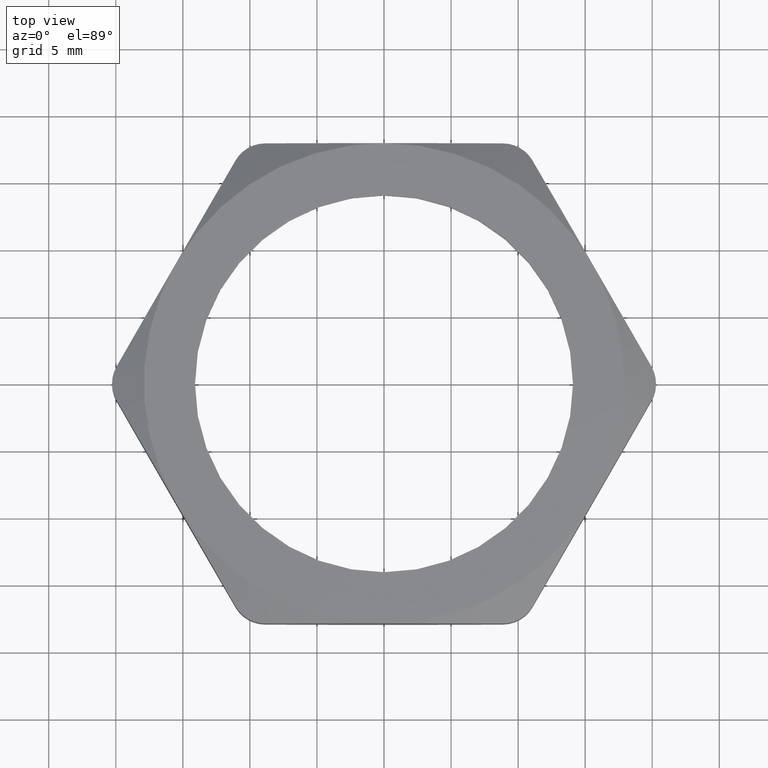
[diagram: clean part render]
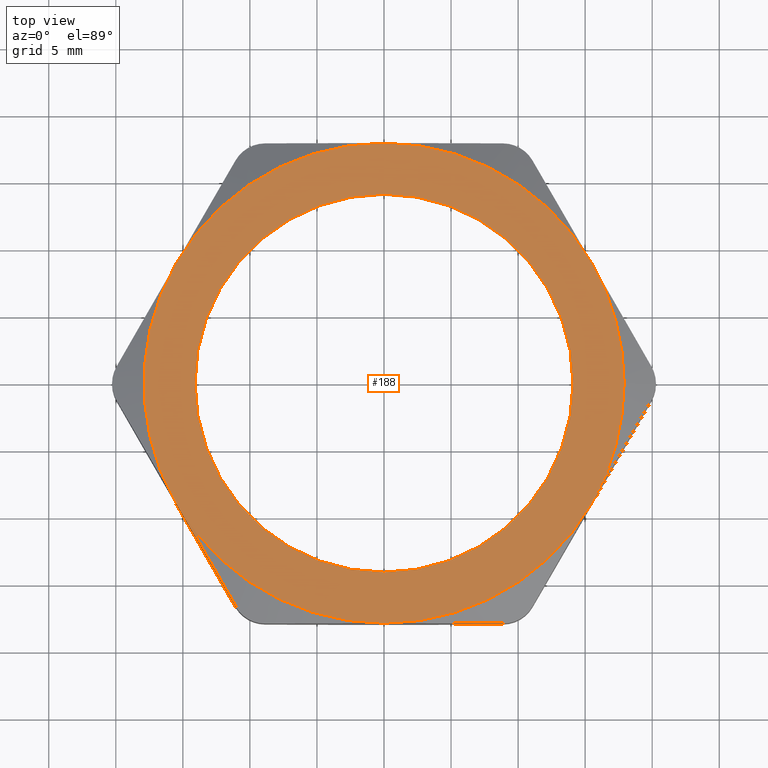
[diagram: same view with one face highlighted and labeled with its STEP entity id]
A machine part, top view. The second image highlights one B-rep face of the part: STEP entity #188.
In plain terms, the highlighted planar face has unit normal (0, 0, 1).
Its self-contained STEP definition (entity closure, byte-faithful):
#90 = VERTEX_POINT ( 'NONE', #1006 ) ;
#100 = VERTEX_POINT ( 'NONE', #1088 ) ;
#112 = VERTEX_POINT ( 'NONE', #1106 ) ;
#122 = VERTEX_POINT ( 'NONE', #1136 ) ;
#132 = EDGE_LOOP ( 'NONE', ( #189, #190 ) ) ;
#175 = ORIENTED_EDGE ( 'NONE', *, *, #176, .T. ) ;
#176 = EDGE_CURVE ( 'NONE', #122, #112, #1274, .T. ) ;
#177 = ORIENTED_EDGE ( 'NONE', *, *, #178, .T. ) ;
#178 = EDGE_CURVE ( 'NONE', #112, #100, #1267, .T. ) ;
#179 = ORIENTED_EDGE ( 'NONE', *, *, #180, .T. ) ;
#180 = EDGE_CURVE ( 'NONE', #100, #90, #1261, .T. ) ;
#188 = ADVANCED_FACE ( 'NONE', ( #1311, #1310 ), #1307, .T. ) ;
#189 = ORIENTED_EDGE ( 'NONE', *, *, #589, .F. ) ;
#190 = ORIENTED_EDGE ( 'NONE', *, *, #191, .F. ) ;
#191 = EDGE_CURVE ( 'NONE', #590, #525, #1293, .T. ) ;
#192 = EDGE_LOOP ( 'NONE', ( #193, #195, #196, #198, #175, #177, #179 ) ) ;
#193 = ORIENTED_EDGE ( 'NONE', *, *, #194, .T. ) ;
#194 = EDGE_CURVE ( 'NONE', #90, #605, #1288, .T. ) ;
#195 = ORIENTED_EDGE ( 'NONE', *, *, #608, .T. ) ;
#196 = ORIENTED_EDGE ( 'NONE', *, *, #197, .T. ) ;
#197 = EDGE_CURVE ( 'NONE', #617, #205, #1341, .T. ) ;
#198 = ORIENTED_EDGE ( 'NONE', *, *, #199, .T. ) ;
#199 = EDGE_CURVE ( 'NONE', #205, #122, #1336, .T. ) ;
#205 = VERTEX_POINT ( 'NONE', #1326 ) ;
#525 = VERTEX_POINT ( 'NONE', #1898 ) ;
#589 = EDGE_CURVE ( 'NONE', #525, #590, #1969, .T. ) ;
#590 = VERTEX_POINT ( 'NONE', #2028 ) ;
#605 = VERTEX_POINT ( 'NONE', #2056 ) ;
#608 = EDGE_CURVE ( 'NONE', #605, #617, #2047, .T. ) ;
#617 = VERTEX_POINT ( 'NONE', #2080 ) ;
#1006 = CARTESIAN_POINT ( 'NONE',  ( 0.6105479096680293000, -0.3524999999999999200, 0.2700000000000000200 ) ) ;
#1088 = CARTESIAN_POINT ( 'NONE',  ( 0.0000000000000000000, -0.7049999999999999600, 0.2700000000000000200 ) ) ;
#1106 = CARTESIAN_POINT ( 'NONE',  ( -0.6105479096680297400, -0.3525000000000001500, 0.2700000000000000200 ) ) ;
#1136 = CARTESIAN_POINT ( 'NONE',  ( -0.6105479096680291900, 0.3525000000000000900, 0.2700000000000000200 ) ) ;
#1257 = DIRECTION ( 'NONE',  ( 1.000000000000000000, 0.0000000000000000000, 0.0000000000000000000 ) ) ;
#1258 = DIRECTION ( 'NONE',  ( 0.0000000000000000000, 0.0000000000000000000, 1.000000000000000000 ) ) ;
#1259 = CARTESIAN_POINT ( 'NONE',  ( 0.0000000000000000000, 0.0000000000000000000, 0.2700000000000000200 ) ) ;
#1260 = AXIS2_PLACEMENT_3D ( 'NONE', #1259, #1258, #1257 ) ;
#1261 = CIRCLE ( 'NONE', #1260, 0.7049999999999999600 ) ;
#1263 = DIRECTION ( 'NONE',  ( 1.000000000000000000, 0.0000000000000000000, 0.0000000000000000000 ) ) ;
#1264 = DIRECTION ( 'NONE',  ( 0.0000000000000000000, 0.0000000000000000000, 1.000000000000000000 ) ) ;
#1265 = CARTESIAN_POINT ( 'NONE',  ( 0.0000000000000000000, 0.0000000000000000000, 0.2700000000000000200 ) ) ;
#1266 = AXIS2_PLACEMENT_3D ( 'NONE', #1265, #1264, #1263 ) ;
#1267 = CIRCLE ( 'NONE', #1266, 0.7049999999999999600 ) ;
#1268 = DIRECTION ( 'NONE',  ( 1.000000000000000000, 0.0000000000000000000, 0.0000000000000000000 ) ) ;
#1269 = DIRECTION ( 'NONE',  ( 0.0000000000000000000, 0.0000000000000000000, 1.000000000000000000 ) ) ;
#1270 = CARTESIAN_POINT ( 'NONE',  ( 0.0000000000000000000, 0.0000000000000000000, 0.2700000000000000200 ) ) ;
#1271 = AXIS2_PLACEMENT_3D ( 'NONE', #1270, #1269, #1268 ) ;
#1274 = CIRCLE ( 'NONE', #1271, 0.7049999999999999600 ) ;
#1287 = AXIS2_PLACEMENT_3D ( 'NONE', #1344, #1343, #1342 ) ;
#1288 = CIRCLE ( 'NONE', #1287, 0.7049999999999999600 ) ;
#1289 = DIRECTION ( 'NONE',  ( 1.000000000000000000, 0.0000000000000000000, 0.0000000000000000000 ) ) ;
#1290 = DIRECTION ( 'NONE',  ( 0.0000000000000000000, 0.0000000000000000000, 1.000000000000000000 ) ) ;
#1291 = CARTESIAN_POINT ( 'NONE',  ( 0.0000000000000000000, 0.0000000000000000000, 0.2700000000000000200 ) ) ;
#1292 = AXIS2_PLACEMENT_3D ( 'NONE', #1291, #1290, #1289 ) ;
#1293 = CIRCLE ( 'NONE', #1292, 0.5550000000000000500 ) ;
#1294 = DIRECTION ( 'NONE',  ( 1.000000000000000000, 0.0000000000000000000, 0.0000000000000000000 ) ) ;
#1295 = DIRECTION ( 'NONE',  ( 0.0000000000000000000, 0.0000000000000000000, 1.000000000000000000 ) ) ;
#1296 = AXIS2_PLACEMENT_3D ( 'NONE', #1308, #1295, #1294 ) ;
#1307 = PLANE ( 'NONE',  #1296 ) ;
#1308 = CARTESIAN_POINT ( 'NONE',  ( -0.8140638795573724700, -1.022001824137960300E-016, 0.2700000000000000200 ) ) ;
#1310 = FACE_OUTER_BOUND ( 'NONE', #192, .T. ) ;
#1311 = FACE_BOUND ( 'NONE', #132, .T. ) ;
#1326 = CARTESIAN_POINT ( 'NONE',  ( 0.0000000000000000000, 0.7049999999999999600, 0.2700000000000000200 ) ) ;
#1332 = DIRECTION ( 'NONE',  ( 1.000000000000000000, 0.0000000000000000000, 0.0000000000000000000 ) ) ;
#1333 = DIRECTION ( 'NONE',  ( 0.0000000000000000000, 0.0000000000000000000, 1.000000000000000000 ) ) ;
#1334 = CARTESIAN_POINT ( 'NONE',  ( 0.0000000000000000000, 0.0000000000000000000, 0.2700000000000000200 ) ) ;
#1335 = AXIS2_PLACEMENT_3D ( 'NONE', #1334, #1333, #1332 ) ;
#1336 = CIRCLE ( 'NONE', #1335, 0.7049999999999999600 ) ;
#1337 = DIRECTION ( 'NONE',  ( 1.000000000000000000, 0.0000000000000000000, 0.0000000000000000000 ) ) ;
#1338 = DIRECTION ( 'NONE',  ( 0.0000000000000000000, 0.0000000000000000000, 1.000000000000000000 ) ) ;
#1339 = CARTESIAN_POINT ( 'NONE',  ( 0.0000000000000000000, 0.0000000000000000000, 0.2700000000000000200 ) ) ;
#1340 = AXIS2_PLACEMENT_3D ( 'NONE', #1339, #1338, #1337 ) ;
#1341 = CIRCLE ( 'NONE', #1340, 0.7049999999999999600 ) ;
#1342 = DIRECTION ( 'NONE',  ( 1.000000000000000000, 0.0000000000000000000, 0.0000000000000000000 ) ) ;
#1343 = DIRECTION ( 'NONE',  ( 0.0000000000000000000, 0.0000000000000000000, 1.000000000000000000 ) ) ;
#1344 = CARTESIAN_POINT ( 'NONE',  ( 0.0000000000000000000, 0.0000000000000000000, 0.2700000000000000200 ) ) ;
#1898 = CARTESIAN_POINT ( 'NONE',  ( -0.5550000000000000500, 0.0000000000000000000, 0.2700000000000000200 ) ) ;
#1969 = CIRCLE ( 'NONE', #2032, 0.5550000000000000500 ) ;
#2028 = CARTESIAN_POINT ( 'NONE',  ( 0.5550000000000000500, 6.919254415182545100E-017, 0.2700000000000000200 ) ) ;
#2029 = DIRECTION ( 'NONE',  ( 1.000000000000000000, 0.0000000000000000000, 0.0000000000000000000 ) ) ;
#2030 = DIRECTION ( 'NONE',  ( 0.0000000000000000000, 0.0000000000000000000, 1.000000000000000000 ) ) ;
#2031 = CARTESIAN_POINT ( 'NONE',  ( 0.0000000000000000000, 0.0000000000000000000, 0.2700000000000000200 ) ) ;
#2032 = AXIS2_PLACEMENT_3D ( 'NONE', #2031, #2030, #2029 ) ;
#2044 = DIRECTION ( 'NONE',  ( 1.000000000000000000, 0.0000000000000000000, 0.0000000000000000000 ) ) ;
#2045 = DIRECTION ( 'NONE',  ( 0.0000000000000000000, 0.0000000000000000000, 1.000000000000000000 ) ) ;
#2046 = AXIS2_PLACEMENT_3D ( 'NONE', #2054, #2045, #2044 ) ;
#2047 = CIRCLE ( 'NONE', #2046, 0.7049999999999999600 ) ;
#2054 = CARTESIAN_POINT ( 'NONE',  ( 0.0000000000000000000, 0.0000000000000000000, 0.2700000000000000200 ) ) ;
#2056 = CARTESIAN_POINT ( 'NONE',  ( 0.7049999999999999600, 0.0000000000000000000, 0.2700000000000000200 ) ) ;
#2080 = CARTESIAN_POINT ( 'NONE',  ( 0.6105479096680293000, 0.3524999999999999800, 0.2700000000000000200 ) ) ;